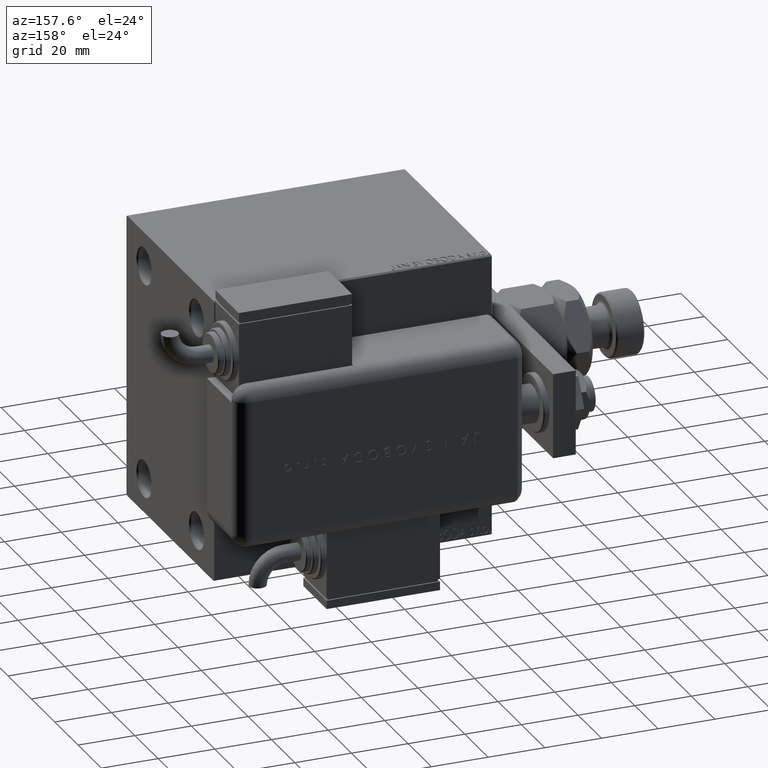
[diagram: clean part render]
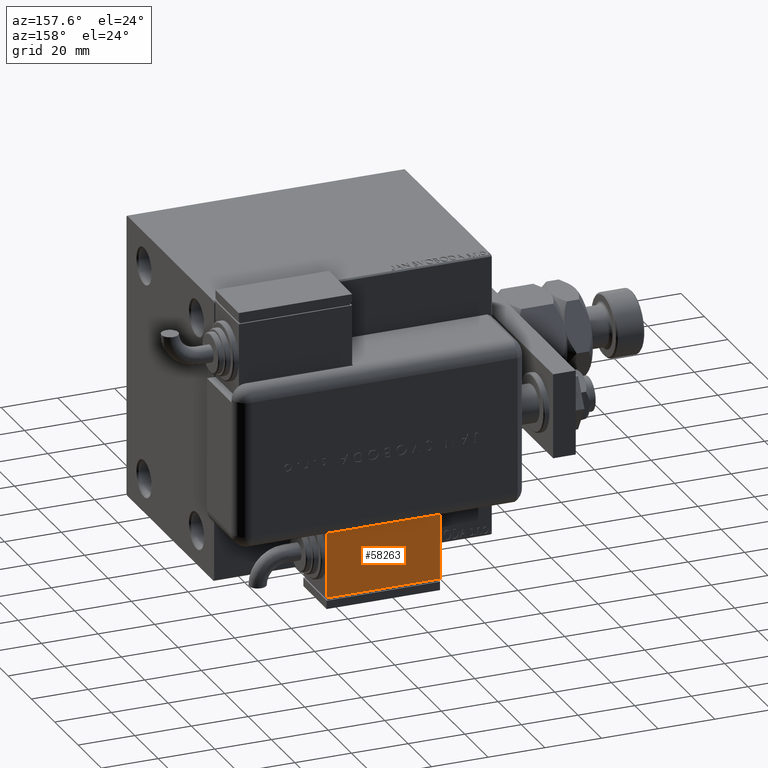
[diagram: same view with one face highlighted and labeled with its STEP entity id]
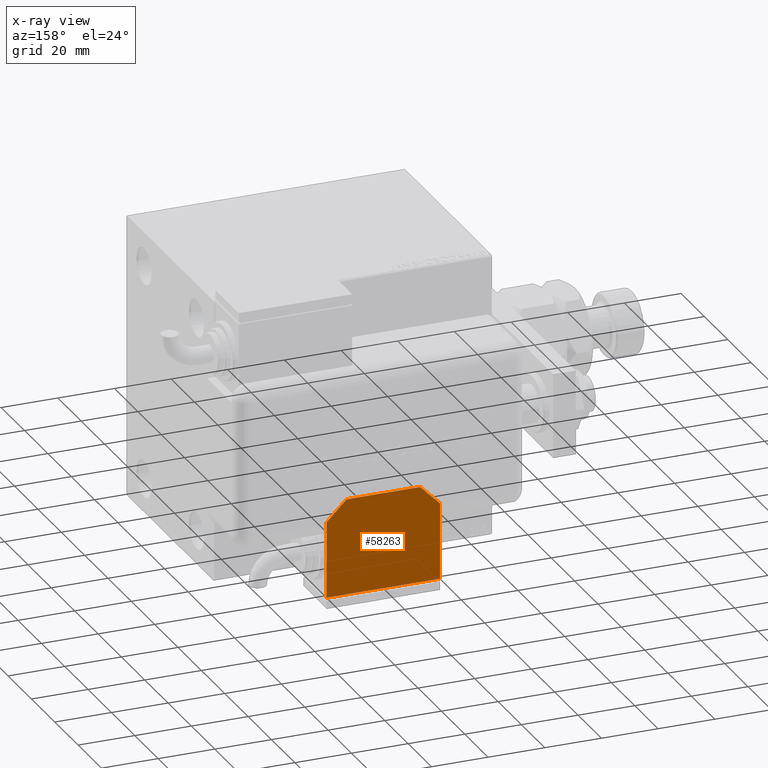
[diagram: x-ray of the same camera — body ghosted, the highlighted face saturated]
A machine part, auxiliary view. The second image highlights one B-rep face of the part: STEP entity #58263.
The next image is the same camera in x-ray: the body ghosted, the highlighted face saturated — about 0% of this face is hidden behind the body in this view.
In plain terms, the highlighted planar face has unit normal (-0, 1, -0).
Its self-contained STEP definition (entity closure, byte-faithful):
#1387 = CARTESIAN_POINT ( 'NONE',  ( 12.99999999999999112, 20.50000000000009592, 10.00000000000000000 ) ) ;
#1970 = CARTESIAN_POINT ( 'NONE',  ( -12.99999999999994138, 20.50000000000009592, 10.00000000000000000 ) ) ;
#1999 = DIRECTION ( 'NONE',  ( -0.7071067811865479058, 0.7071067811865470176, -0.000000000000000000 ) ) ;
#2657 = VECTOR ( 'NONE', #54197, 1000.000000000000000 ) ;
#3882 = EDGE_CURVE ( 'NONE', #15784, #60537, #51575, .T. ) ;
#4297 = CARTESIAN_POINT ( 'NONE',  ( -19.99999999999994316, -13.49999999999996092, 10.00000000000000000 ) ) ;
#9959 = CARTESIAN_POINT ( 'NONE',  ( 20.00000000000005329, -13.49999999999996092, 10.00000000000000000 ) ) ;
#10475 = CARTESIAN_POINT ( 'NONE',  ( -10.00000000000004086, 20.50000000000009592, 10.00000000000000000 ) ) ;
#11361 = LINE ( 'NONE', #34514, #35289 ) ;
#12010 = CARTESIAN_POINT ( 'NONE',  ( 9.999999999999984013, 23.50000000000009592, 10.00000000000000000 ) ) ;
#12032 = EDGE_CURVE ( 'NONE', #59844, #21496, #44888, .T. ) ;
#13183 = FACE_OUTER_BOUND ( 'NONE', #21022, .T. ) ;
#14937 = AXIS2_PLACEMENT_3D ( 'NONE', #37889, #32886, #46695 ) ;
#15518 = ORIENTED_EDGE ( 'NONE', *, *, #12032, .T. ) ;
#15686 = VECTOR ( 'NONE', #54296, 1000.000000000000000 ) ;
#15784 = VERTEX_POINT ( 'NONE', #55188 ) ;
#16246 = EDGE_CURVE ( 'NONE', #48939, #42283, #58146, .T. ) ;
#19141 = EDGE_CURVE ( 'NONE', #60537, #23055, #28638, .T. ) ;
#19181 = VECTOR ( 'NONE', #1999, 1000.000000000000114 ) ;
#20551 = CARTESIAN_POINT ( 'NONE',  ( -19.99999999999993960, 13.49999999999986500, 10.00000000000000000 ) ) ;
#21022 = EDGE_LOOP ( 'NONE', ( #15518, #57066, #22823, #52484, #36250, #29365, #24460 ) ) ;
#21496 = VERTEX_POINT ( 'NONE', #1387 ) ;
#22823 = ORIENTED_EDGE ( 'NONE', *, *, #16246, .T. ) ;
#23055 = VERTEX_POINT ( 'NONE', #9959 ) ;
#24460 = ORIENTED_EDGE ( 'NONE', *, *, #50189, .T. ) ;
#24624 = DIRECTION ( 'NONE',  ( -0.7071067811865356934, -0.7071067811865593411, -0.000000000000000000 ) ) ;
#28638 = LINE ( 'NONE', #52131, #42479 ) ;
#29365 = ORIENTED_EDGE ( 'NONE', *, *, #19141, .T. ) ;
#29817 = DIRECTION ( 'NONE',  ( -1.284980352575421081E-16, -1.000000000000000000, -0.000000000000000000 ) ) ;
#31847 = DIRECTION ( 'NONE',  ( -1.284980352575421081E-16, -1.000000000000000000, -0.000000000000000000 ) ) ;
#32886 = DIRECTION ( 'NONE',  ( 0.000000000000000000, 0.000000000000000000, 1.000000000000000000 ) ) ;
#34514 = CARTESIAN_POINT ( 'NONE',  ( -19.99999999999994316, -13.49999999999996092, 10.00000000000000000 ) ) ;
#35289 = VECTOR ( 'NONE', #29817, 1000.000000000000000 ) ;
#36250 = ORIENTED_EDGE ( 'NONE', *, *, #3882, .T. ) ;
#37889 = CARTESIAN_POINT ( 'NONE',  ( 0.000000000000000000, 0.000000000000000000, 10.00000000000000000 ) ) ;
#41023 = VECTOR ( 'NONE', #31847, 1000.000000000000000 ) ;
#42283 = VERTEX_POINT ( 'NONE', #60019 ) ;
#42285 = PLANE ( 'NONE',  #14937 ) ;
#42479 = VECTOR ( 'NONE', #43344, 1000.000000000000000 ) ;
#42981 = EDGE_CURVE ( 'NONE', #42283, #15784, #11361, .T. ) ;
#43344 = DIRECTION ( 'NONE',  ( 1.000000000000000000, 0.000000000000000000, 0.000000000000000000 ) ) ;
#44888 = LINE ( 'NONE', #12010, #19181 ) ;
#46046 = LINE ( 'NONE', #54513, #2657 ) ;
#46623 = CARTESIAN_POINT ( 'NONE',  ( -19.99999999999994316, -13.49999999999996092, 10.00000000000000000 ) ) ;
#46695 = DIRECTION ( 'NONE',  ( 1.000000000000000000, 0.000000000000000000, -0.000000000000000000 ) ) ;
#48939 = VERTEX_POINT ( 'NONE', #1970 ) ;
#50189 = EDGE_CURVE ( 'NONE', #23055, #59844, #46046, .T. ) ;
#51575 = LINE ( 'NONE', #4297, #41023 ) ;
#51880 = EDGE_CURVE ( 'NONE', #21496, #48939, #58380, .T. ) ;
#52131 = CARTESIAN_POINT ( 'NONE',  ( -19.99999999999994316, -13.49999999999996092, 10.00000000000000000 ) ) ;
#52484 = ORIENTED_EDGE ( 'NONE', *, *, #42981, .T. ) ;
#52777 = CARTESIAN_POINT ( 'NONE',  ( 20.00000000000005684, 13.50000000000003730, 10.00000000000000000 ) ) ;
#54197 = DIRECTION ( 'NONE',  ( 1.284980352575412699E-16, 1.000000000000000000, 0.000000000000000000 ) ) ;
#54296 = DIRECTION ( 'NONE',  ( -1.000000000000000000, 0.000000000000000000, 0.000000000000000000 ) ) ;
#54513 = CARTESIAN_POINT ( 'NONE',  ( 20.00000000000005329, -13.49999999999996092, 10.00000000000000000 ) ) ;
#55188 = CARTESIAN_POINT ( 'NONE',  ( -19.99999999999993960, 2.569960705150834076E-15, 10.00000000000000000 ) ) ;
#56355 = VECTOR ( 'NONE', #24624, 1000.000000000000000 ) ;
#57066 = ORIENTED_EDGE ( 'NONE', *, *, #51880, .T. ) ;
#58146 = LINE ( 'NONE', #20551, #56355 ) ;
#58263 = ADVANCED_FACE ( 'NONE', ( #13183 ), #42285, .T. ) ;
#58380 = LINE ( 'NONE', #10475, #15686 ) ;
#59844 = VERTEX_POINT ( 'NONE', #52777 ) ;
#60019 = CARTESIAN_POINT ( 'NONE',  ( -19.99999999999993960, 13.49999999999986500, 10.00000000000000000 ) ) ;
#60537 = VERTEX_POINT ( 'NONE', #46623 ) ;